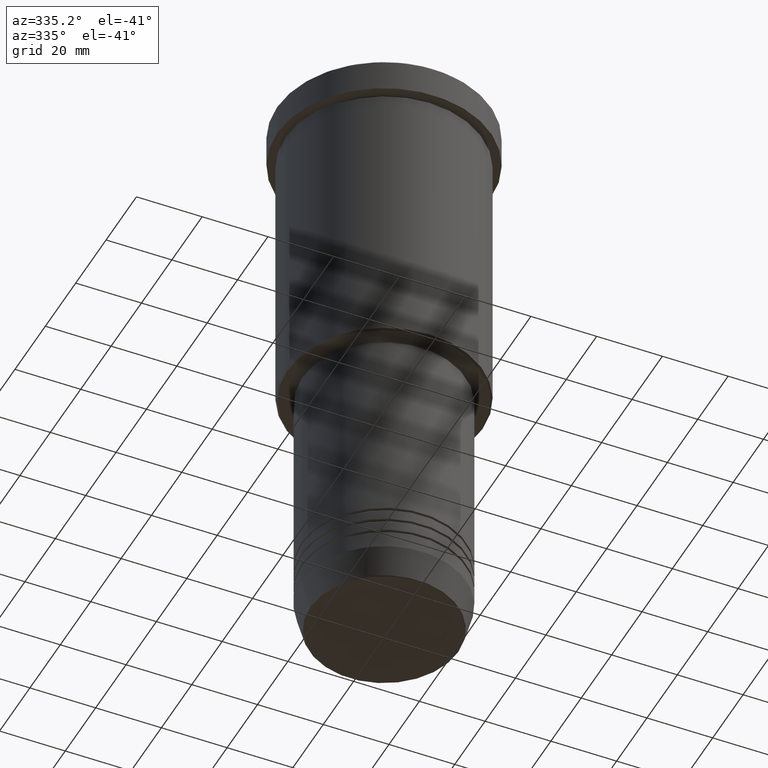
[diagram: clean part render]
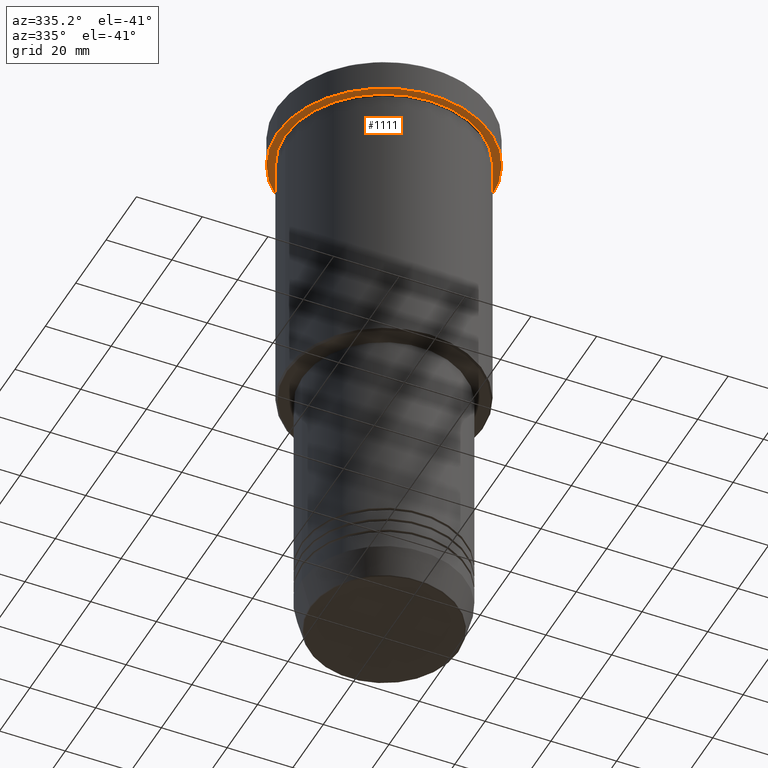
[diagram: same view with one face highlighted and labeled with its STEP entity id]
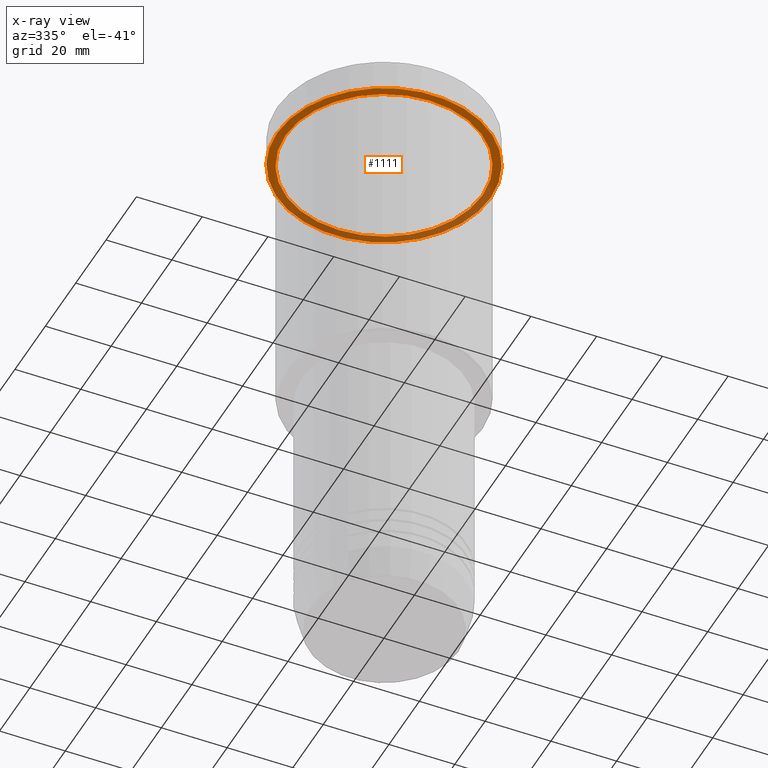
[diagram: x-ray of the same camera — body ghosted, the highlighted face saturated]
A machine part, auxiliary view. The second image highlights one B-rep face of the part: STEP entity #1111.
The next image is the same camera in x-ray: the body ghosted, the highlighted face saturated — about 40% of this face is hidden behind the body in this view.
In plain terms, the highlighted planar face has unit normal (0, 0, -1).
Its self-contained STEP definition (entity closure, byte-faithful):
#98 = VERTEX_POINT ( 'NONE', #505 ) ;
#110 = EDGE_LOOP ( 'NONE', ( #637, #1057 ) ) ;
#128 = CARTESIAN_POINT ( 'NONE',  ( -30.00000000000000000, 0.000000000000000000, -9.999999999999992895 ) ) ;
#239 = CARTESIAN_POINT ( 'NONE',  ( 30.00000000000000000, 3.673940397442059178E-15, -9.999999999999992895 ) ) ;
#244 = DIRECTION ( 'NONE',  ( 1.000000000000000000, 0.000000000000000000, 0.000000000000000000 ) ) ;
#248 = AXIS2_PLACEMENT_3D ( 'NONE', #659, #734, #824 ) ;
#266 = AXIS2_PLACEMENT_3D ( 'NONE', #1106, #1087, #839 ) ;
#302 = CIRCLE ( 'NONE', #417, 32.50000000000000000 ) ;
#328 = EDGE_CURVE ( 'NONE', #98, #892, #378, .T. ) ;
#372 = ORIENTED_EDGE ( 'NONE', *, *, #660, .F. ) ;
#374 = FACE_BOUND ( 'NONE', #110, .T. ) ;
#375 = DIRECTION ( 'NONE',  ( 1.000000000000000000, 0.000000000000000000, 0.000000000000000000 ) ) ;
#378 = CIRCLE ( 'NONE', #1037, 32.50000000000000000 ) ;
#415 = AXIS2_PLACEMENT_3D ( 'NONE', #672, #1134, #596 ) ;
#417 = AXIS2_PLACEMENT_3D ( 'NONE', #425, #518, #244 ) ;
#425 = CARTESIAN_POINT ( 'NONE',  ( 0.000000000000000000, 0.000000000000000000, -9.999999999999992895 ) ) ;
#436 = CARTESIAN_POINT ( 'NONE',  ( 0.000000000000000000, 0.000000000000000000, -9.999999999999992895 ) ) ;
#455 = FACE_OUTER_BOUND ( 'NONE', #947, .T. ) ;
#482 = VERTEX_POINT ( 'NONE', #239 ) ;
#505 = CARTESIAN_POINT ( 'NONE',  ( 32.50000000000000000, 0.000000000000000000, -9.999999999999992895 ) ) ;
#518 = DIRECTION ( 'NONE',  ( -0.000000000000000000, -0.000000000000000000, 1.000000000000000000 ) ) ;
#520 = EDGE_CURVE ( 'NONE', #482, #693, #1113, .T. ) ;
#558 = CARTESIAN_POINT ( 'NONE',  ( -32.50000000000000000, 3.980102097228898626E-15, -9.999999999999992895 ) ) ;
#596 = DIRECTION ( 'NONE',  ( -1.000000000000000000, 0.000000000000000000, 0.000000000000000000 ) ) ;
#637 = ORIENTED_EDGE ( 'NONE', *, *, #901, .T. ) ;
#659 = CARTESIAN_POINT ( 'NONE',  ( 0.000000000000000000, 32.50000000000000000, -9.999999999999992895 ) ) ;
#660 = EDGE_CURVE ( 'NONE', #892, #98, #302, .T. ) ;
#672 = CARTESIAN_POINT ( 'NONE',  ( 0.000000000000000000, 0.000000000000000000, -9.999999999999992895 ) ) ;
#693 = VERTEX_POINT ( 'NONE', #128 ) ;
#734 = DIRECTION ( 'NONE',  ( 0.000000000000000000, 0.000000000000000000, -1.000000000000000000 ) ) ;
#780 = CIRCLE ( 'NONE', #266, 30.00000000000000000 ) ;
#800 = DIRECTION ( 'NONE',  ( -0.000000000000000000, -0.000000000000000000, 1.000000000000000000 ) ) ;
#824 = DIRECTION ( 'NONE',  ( -1.000000000000000000, 0.000000000000000000, -0.000000000000000000 ) ) ;
#839 = DIRECTION ( 'NONE',  ( -1.000000000000000000, 0.000000000000000000, 0.000000000000000000 ) ) ;
#892 = VERTEX_POINT ( 'NONE', #558 ) ;
#901 = EDGE_CURVE ( 'NONE', #693, #482, #780, .T. ) ;
#947 = EDGE_LOOP ( 'NONE', ( #997, #372 ) ) ;
#997 = ORIENTED_EDGE ( 'NONE', *, *, #328, .F. ) ;
#1012 = PLANE ( 'NONE',  #248 ) ;
#1037 = AXIS2_PLACEMENT_3D ( 'NONE', #436, #800, #375 ) ;
#1057 = ORIENTED_EDGE ( 'NONE', *, *, #520, .T. ) ;
#1087 = DIRECTION ( 'NONE',  ( -0.000000000000000000, -0.000000000000000000, 1.000000000000000000 ) ) ;
#1106 = CARTESIAN_POINT ( 'NONE',  ( 0.000000000000000000, 0.000000000000000000, -9.999999999999992895 ) ) ;
#1111 = ADVANCED_FACE ( 'NONE', ( #374, #455 ), #1012, .T. ) ;
#1113 = CIRCLE ( 'NONE', #415, 30.00000000000000000 ) ;
#1134 = DIRECTION ( 'NONE',  ( -0.000000000000000000, -0.000000000000000000, 1.000000000000000000 ) ) ;